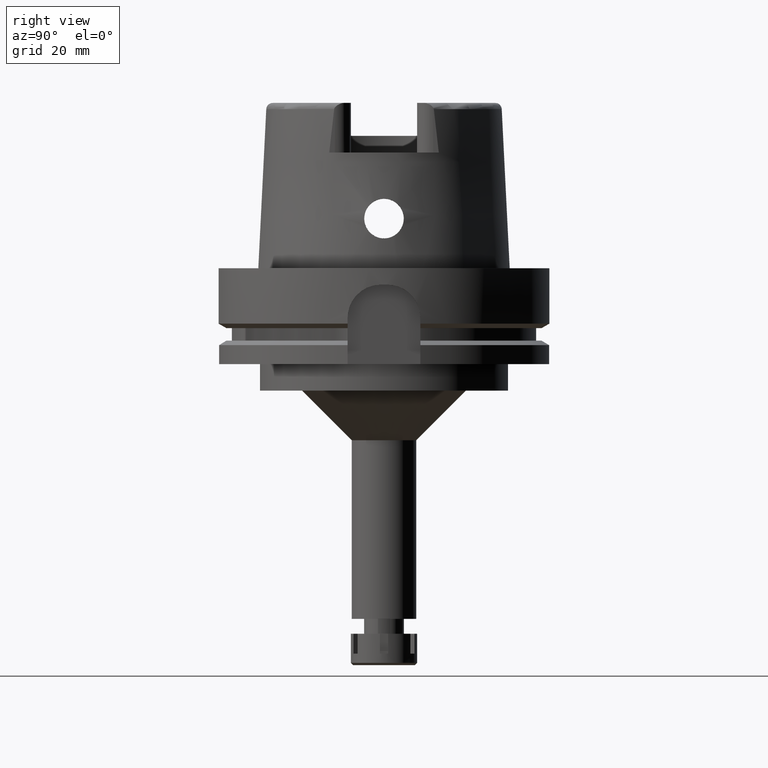
[diagram: clean part render]
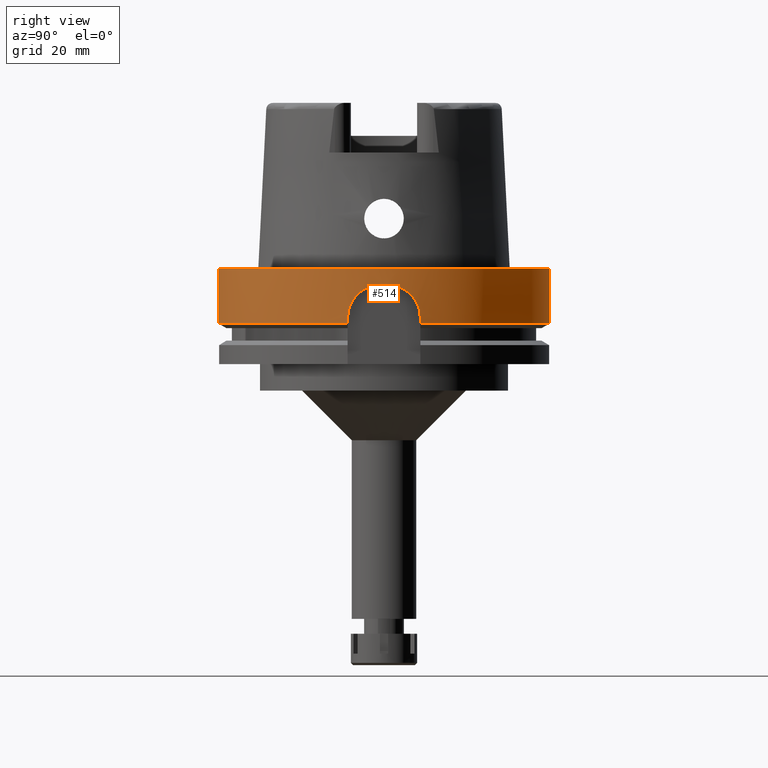
[diagram: same view with one face highlighted and labeled with its STEP entity id]
A machine part, right view. The second image highlights one B-rep face of the part: STEP entity #514.
In plain terms, the highlighted cylindrical surface (partial cylindrical patch) has radius 50 mm, axis along (0, 0, 1).
Its self-contained STEP definition (entity closure, byte-faithful):
#88 = ORIENTED_EDGE ( 'NONE', *, *, #1736, .F. ) ;
#99 = CARTESIAN_POINT ( 'NONE',  ( 48.99493646554881110, -9.978835811942055045, -10.59541656849807190 ) ) ;
#244 = ORIENTED_EDGE ( 'NONE', *, *, #5868, .F. ) ;
#245 = AXIS2_PLACEMENT_3D ( 'NONE', #1968, #3887, #506 ) ;
#247 = CARTESIAN_POINT ( 'NONE',  ( 48.77499359302999693, 11.00000000000000000, -14.38727949799529604 ) ) ;
#279 = CARTESIAN_POINT ( 'NONE',  ( 48.77499359303000404, 11.00000000000000000, -15.00000000000000000 ) ) ;
#288 = VERTEX_POINT ( 'NONE', #5166 ) ;
#309 = CIRCLE ( 'NONE', #5880, 49.99999999999999289 ) ;
#310 = CARTESIAN_POINT ( 'NONE',  ( 49.56496676083803266, 6.581428031144246127, -6.702550432547327297 ) ) ;
#320 = CARTESIAN_POINT ( 'NONE',  ( 49.83945613748896619, -4.000954191359886281, -5.459433149953422770 ) ) ;
#347 = CARTESIAN_POINT ( 'NONE',  ( 48.91479432614488587, 10.36182193981408339, -11.48304786032663927 ) ) ;
#356 = CARTESIAN_POINT ( 'NONE',  ( 49.58780698970614509, -6.407210186110515515, -6.587769479219980795 ) ) ;
#377 = CARTESIAN_POINT ( 'NONE',  ( 49.97771229340344945, 1.614212440280480720, -4.999999999999997335 ) ) ;
#385 = CARTESIAN_POINT ( 'NONE',  ( 49.78192707634182312, -4.663512068624955376, -5.695058963185425149 ) ) ;
#413 = CARTESIAN_POINT ( 'NONE',  ( 49.95328098358680080, -2.238803720519722873, -5.055742412968742272 ) ) ;
#443 = CARTESIAN_POINT ( 'NONE',  ( 49.06437838925266703, -9.638526519421839467, -9.951850654647333982 ) ) ;
#448 = EDGE_CURVE ( 'NONE', #495, #4229, #1462, .T. ) ;
#473 = CARTESIAN_POINT ( 'NONE',  ( 49.39834075078655218, -7.732885138338184916, -7.605386748315880574 ) ) ;
#495 = VERTEX_POINT ( 'NONE', #4391 ) ;
#501 = CARTESIAN_POINT ( 'NONE',  ( 48.94894263345256036, -10.19877896669233053, -11.07774993076129455 ) ) ;
#506 = DIRECTION ( 'NONE',  ( 0.0000000000000000000, 1.000000000000000000, 0.0000000000000000000 ) ) ;
#514 = ADVANCED_FACE ( 'NONE', ( #5311 ), #4858, .T. ) ;
#577 = DIRECTION ( 'NONE',  ( 0.0000000000000000000, 0.0000000000000000000, -1.000000000000000000 ) ) ;
#711 = CARTESIAN_POINT ( 'NONE',  ( 49.28179997357231912, 8.446197654882229955, -8.324378336677213497 ) ) ;
#745 = CARTESIAN_POINT ( 'NONE',  ( 49.33865312065250208, 8.105429752828294809, -7.963445448308294594 ) ) ;
#811 = CARTESIAN_POINT ( 'NONE',  ( 49.60564793962586094, 6.275024799357407979, -6.496570161155732492 ) ) ;
#836 = EDGE_CURVE ( 'NONE', #3610, #1693, #3963, .T. ) ;
#848 = CARTESIAN_POINT ( 'NONE',  ( 49.55662190688366309, 6.643863316616059222, -6.744834015352500600 ) ) ;
#950 = CARTESIAN_POINT ( 'NONE',  ( 48.98273980073956579, -10.03735590529478294, -10.71714038991666484 ) ) ;
#967 = CARTESIAN_POINT ( 'NONE',  ( 0.0000000000000000000, 0.0000000000000000000, -5.000000000000000000 ) ) ;
#998 = DIRECTION ( 'NONE',  ( 0.0000000000000000000, 0.0000000000000000000, 1.000000000000000000 ) ) ;
#1011 = CARTESIAN_POINT ( 'NONE',  ( 49.46604263888387720, -7.286270339748112335, -7.221202394339281128 ) ) ;
#1084 = CARTESIAN_POINT ( 'NONE',  ( 0.0000000000000000000, 0.0000000000000000000, 0.0000000000000000000 ) ) ;
#1223 = CARTESIAN_POINT ( 'NONE',  ( 49.31945312600653608, 8.221817266279819236, -8.082628935079126720 ) ) ;
#1227 = CARTESIAN_POINT ( 'NONE',  ( 0.0000000000000000000, 0.0000000000000000000, -16.75240473580999989 ) ) ;
#1294 = CARTESIAN_POINT ( 'NONE',  ( 49.77054041057699862, -4.783569811470127497, -5.743396082489701904 ) ) ;
#1315 = ORIENTED_EDGE ( 'NONE', *, *, #836, .F. ) ;
#1318 = CARTESIAN_POINT ( 'NONE',  ( 49.54371901960561075, 6.738927160425063789, -6.810528801239854602 ) ) ;
#1328 = CARTESIAN_POINT ( 'NONE',  ( 49.77245377719701480, -4.763569838085457420, -5.735246431890997698 ) ) ;
#1353 = CARTESIAN_POINT ( 'NONE',  ( 49.76179628799657451, 4.873772020791776960, -5.780782315464648491 ) ) ;
#1364 = CARTESIAN_POINT ( 'NONE',  ( 49.57267852349893644, -6.523062891001531582, -6.663583934768706030 ) ) ;
#1425 = CARTESIAN_POINT ( 'NONE',  ( 49.41045203213168691, -7.654703094109661876, -7.535080207974369060 ) ) ;
#1456 = CARTESIAN_POINT ( 'NONE',  ( 48.95776439648555822, -10.15666160547115204, -10.97978164832834835 ) ) ;
#1462 = LINE ( 'NONE', #1488, #3845 ) ;
#1488 = CARTESIAN_POINT ( 'NONE',  ( 48.77499359303000404, 11.00000000000000000, -16.75240473580999989 ) ) ;
#1535 = VECTOR ( 'NONE', #6081, 1000.000000000000000 ) ;
#1544 = CARTESIAN_POINT ( 'NONE',  ( 48.94096314208520937, -10.23696230816230113, -11.16873956921590327 ) ) ;
#1666 = CARTESIAN_POINT ( 'NONE',  ( 48.87674393707114717, 10.54120948439834748, -12.00115026241383376 ) ) ;
#1693 = VERTEX_POINT ( 'NONE', #2779 ) ;
#1696 = CARTESIAN_POINT ( 'NONE',  ( 49.56108095351068954, 6.610592829583718633, -6.722230673437117332 ) ) ;
#1699 = DIRECTION ( 'NONE',  ( 0.0000000000000000000, 0.0000000000000000000, 1.000000000000000000 ) ) ;
#1707 = ORIENTED_EDGE ( 'NONE', *, *, #5593, .T. ) ;
#1736 = EDGE_CURVE ( 'NONE', #288, #5720, #3697, .T. ) ;
#1739 = CARTESIAN_POINT ( 'NONE',  ( 49.87639767666819779, -3.518411891300768701, -5.316500164653930938 ) ) ;
#1764 = CARTESIAN_POINT ( 'NONE',  ( 49.16544797092890207, 9.108932558664836421, -9.136190420978525850 ) ) ;
#1807 = CARTESIAN_POINT ( 'NONE',  ( 49.82636988165926084, -4.161845726787491095, -5.511493841755553014 ) ) ;
#1829 = CARTESIAN_POINT ( 'NONE',  ( 49.73052990978874277, 5.183697505061824806, -5.916898789160295991 ) ) ;
#1839 = CARTESIAN_POINT ( 'NONE',  ( 49.89793573170778274, -3.196910365253966990, -5.238887960337703653 ) ) ;
#1890 = DIRECTION ( 'NONE',  ( 0.9997999799959990108, -0.02000000000000000389, 0.0000000000000000000 ) ) ;
#1913 = DIRECTION ( 'NONE',  ( 0.0000000000000000000, 0.0000000000000000000, 1.000000000000000000 ) ) ;
#1929 = CARTESIAN_POINT ( 'NONE',  ( 48.96585457013529918, -10.11807095405968582, -10.89330374554003278 ) ) ;
#1945 = CIRCLE ( 'NONE', #5214, 50.00000000000000000 ) ;
#1956 = CARTESIAN_POINT ( 'NONE',  ( 0.0000000000000000000, -50.00000000000000000, 0.0000000000000000000 ) ) ;
#1968 = CARTESIAN_POINT ( 'NONE',  ( 0.0000000000000000000, 0.0000000000000000000, -123.2500000000000000 ) ) ;
#1990 = CARTESIAN_POINT ( 'NONE',  ( 48.77499359303000404, -11.00000000000000000, -15.00000000000000000 ) ) ;
#2004 = ORIENTED_EDGE ( 'NONE', *, *, #3953, .F. ) ;
#2017 = CARTESIAN_POINT ( 'NONE',  ( 49.55073958586282856, -6.689344220984132505, -6.774205482412243740 ) ) ;
#2092 = VERTEX_POINT ( 'NONE', #2608 ) ;
#2168 = CARTESIAN_POINT ( 'NONE',  ( 49.33739404800120099, 8.113093122269910751, -7.971196684525627241 ) ) ;
#2196 = CARTESIAN_POINT ( 'NONE',  ( 48.82926044318527659, 10.76052495070106829, -12.80060198106660607 ) ) ;
#2233 = CARTESIAN_POINT ( 'NONE',  ( 49.64248177938728190, 5.975127218322111133, -6.319174716976330153 ) ) ;
#2240 = CARTESIAN_POINT ( 'NONE',  ( 49.77531477545393557, -4.733564130445754969, -5.723076274749266723 ) ) ;
#2242 = CARTESIAN_POINT ( 'NONE',  ( 0.0000000000000000000, 50.00000000000000000, -16.75240473580999989 ) ) ;
#2245 = ORIENTED_EDGE ( 'NONE', *, *, #4278, .T. ) ;
#2284 = CARTESIAN_POINT ( 'NONE',  ( 48.77499359303000404, -11.00000000000000000, -16.75240473580999989 ) ) ;
#2296 = ORIENTED_EDGE ( 'NONE', *, *, #448, .F. ) ;
#2297 = CARTESIAN_POINT ( 'NONE',  ( 49.76411386685738591, 4.850010575467937457, -5.770832213620749052 ) ) ;
#2318 = CARTESIAN_POINT ( 'NONE',  ( 48.77499359303000404, 11.00000000000000000, -15.00000000000000000 ) ) ;
#2366 = CARTESIAN_POINT ( 'NONE',  ( 49.57064774935634688, -6.538472148079495838, -6.673816706413185251 ) ) ;
#2395 = CARTESIAN_POINT ( 'NONE',  ( 48.84396795107890910, -10.69447856156189225, -12.46123641950214633 ) ) ;
#2411 = CARTESIAN_POINT ( 'NONE',  ( 0.0000000000000000000, -50.00000000000000000, 0.0000000000000000000 ) ) ;
#2423 = CARTESIAN_POINT ( 'NONE',  ( 49.35287350463665490, -8.018359093746786570, -7.876598236518157492 ) ) ;
#2499 = DIRECTION ( 'NONE',  ( 0.0000000000000000000, 1.000000000000000000, 0.0000000000000000000 ) ) ;
#2526 = DIRECTION ( 'NONE',  ( 4.946700496258999748E-13, 7.095676941355000738E-14, 1.000000000000000000 ) ) ;
#2608 = CARTESIAN_POINT ( 'NONE',  ( 49.98999899980000095, 1.000000000000000000, -5.000000000000000000 ) ) ;
#2664 = CARTESIAN_POINT ( 'NONE',  ( 49.49988023175471596, 7.052819624301266188, -7.038197812790989438 ) ) ;
#2695 = CARTESIAN_POINT ( 'NONE',  ( 48.92610875242239388, 10.30793063548150457, -11.34409899093541618 ) ) ;
#2735 = CARTESIAN_POINT ( 'NONE',  ( 49.66353029658604612, -5.791941952359221268, -6.221376777214488563 ) ) ;
#2762 = CARTESIAN_POINT ( 'NONE',  ( 49.95282679614464882, 2.250120870932428296, -5.056727787119431383 ) ) ;
#2779 = CARTESIAN_POINT ( 'NONE',  ( 48.77499359303000404, -11.00000000000000000, -15.00000000000000000 ) ) ;
#2928 = CARTESIAN_POINT ( 'NONE',  ( 49.03434599319574971, -9.787369544824320755, -10.21862703251546911 ) ) ;
#2962 = CARTESIAN_POINT ( 'NONE',  ( 48.94468594515902993, -10.21913413085395739, -11.12599018434615239 ) ) ;
#2967 = CARTESIAN_POINT ( 'NONE',  ( 49.98999899980000095, 1.000000000000000000, -5.000000000000000000 ) ) ;
#2989 = CARTESIAN_POINT ( 'NONE',  ( 48.77499359303001825, -11.00000000000000355, -14.38253572031926808 ) ) ;
#3067 = VERTEX_POINT ( 'NONE', #2284 ) ;
#3097 = CARTESIAN_POINT ( 'NONE',  ( 48.93610244466059811, 10.26017787305094764, -11.22519744273120423 ) ) ;
#3132 = CARTESIAN_POINT ( 'NONE',  ( 49.56321377132746875, 6.594605846246127001, -6.711427330220939957 ) ) ;
#3172 = CARTESIAN_POINT ( 'NONE',  ( 49.33438519854037452, 8.131387764260724182, -7.989759036277035875 ) ) ;
#3199 = CARTESIAN_POINT ( 'NONE',  ( 49.32988277997203852, 8.158728486906756672, -8.017608704638069739 ) ) ;
#3206 = CARTESIAN_POINT ( 'NONE',  ( 49.71306143903013464, -5.355979328700309239, -5.992604286611300957 ) ) ;
#3237 = CARTESIAN_POINT ( 'NONE',  ( 49.64614616827093130, -5.939374065967098382, -6.303302322335693653 ) ) ;
#3262 = CARTESIAN_POINT ( 'NONE',  ( 49.74136249068723714, 5.079068558221741192, -5.869220706183151393 ) ) ;
#3271 = CARTESIAN_POINT ( 'NONE',  ( 49.57174269159727231, -6.530167364034880961, -6.668298072457943704 ) ) ;
#3446 = CARTESIAN_POINT ( 'NONE',  ( 48.88535256590828482, -10.50355013045036046, -11.81245062914591770 ) ) ;
#3557 = CARTESIAN_POINT ( 'NONE',  ( 48.93483801777784947, 10.26622744824910072, -11.24004935603877797 ) ) ;
#3583 = CARTESIAN_POINT ( 'NONE',  ( 49.51626149012135159, 6.937049852315970710, -6.952212550806225799 ) ) ;
#3586 = CARTESIAN_POINT ( 'NONE',  ( 48.77499359303000404, -11.00000000000000000, -15.00000000000000000 ) ) ;
#3610 = VERTEX_POINT ( 'NONE', #5129 ) ;
#3617 = CARTESIAN_POINT ( 'NONE',  ( 48.88776689100895823, 10.48957634349499202, -11.84144441687253213 ) ) ;
#3622 = DIRECTION ( 'NONE',  ( 0.0000000000000000000, -1.000000000000000000, 0.0000000000000000000 ) ) ;
#3626 = CARTESIAN_POINT ( 'NONE',  ( 49.80558188375972151, -4.402847898729792320, -5.596390025268380697 ) ) ;
#3648 = CARTESIAN_POINT ( 'NONE',  ( 48.93190507735961603, 10.28025109098400591, -11.27471634077892837 ) ) ;
#3652 = LINE ( 'NONE', #3586, #1535 ) ;
#3666 = CARTESIAN_POINT ( 'NONE',  ( 0.0000000000000000000, 50.00000000000000000, 0.0000000000000000000 ) ) ;
#3676 = CARTESIAN_POINT ( 'NONE',  ( 49.12819095083043663, 9.308068669550296548, -9.424772387329317880 ) ) ;
#3697 = LINE ( 'NONE', #3666, #5150 ) ;
#3711 = CARTESIAN_POINT ( 'NONE',  ( 49.75342103609423106, 4.958852761078784255, -5.816868840426016263 ) ) ;
#3715 = VECTOR ( 'NONE', #5274, 1000.000000000000000 ) ;
#3721 = CARTESIAN_POINT ( 'NONE',  ( 49.61875935454764175, -6.162908080537593314, -6.435429268376628542 ) ) ;
#3845 = VECTOR ( 'NONE', #2526, 1000.000000000000000 ) ;
#3853 = CARTESIAN_POINT ( 'NONE',  ( 49.35795836951319870, -7.987006446862017661, -7.845754077618875222 ) ) ;
#3869 = DIRECTION ( 'NONE',  ( 0.9754998718605770724, 0.2199999999999950051, 0.0000000000000000000 ) ) ;
#3887 = DIRECTION ( 'NONE',  ( 0.0000000000000000000, 0.0000000000000000000, 1.000000000000000000 ) ) ;
#3907 = CARTESIAN_POINT ( 'NONE',  ( 48.94111904088860143, -10.23621530143991443, -11.16694110815239860 ) ) ;
#3953 = EDGE_CURVE ( 'NONE', #4229, #2092, #4055, .T. ) ;
#3963 = B_SPLINE_CURVE_WITH_KNOTS ( 'NONE', 3,
 ( #4102, #5992, #413, #1839, #1739, #320, #1807, #3626, #5525, #385, #2240, #1328, #1294, #4200, #5559, #3206, #2735, #3237, #3721, #4639, #356, #4674, #5621, #1364, #3271, #5161, #2366, #2017, #5337, #1011, #5743, #1425, #473, #5801, #5251, #3853, #2423, #4356, #4852, #4292, #4325, #443, #2928, #99, #950, #1929, #1456, #501, #2962, #4265, #6146, #3907, #1544, #3446, #2395, #4821, #2989, #1990 ),
 .UNSPECIFIED., .F., .F.,
 ( 4, 2, 2, 2, 1, 1, 1, 2, 2, 2, 2, 1, 1, 1, 1, 1, 2, 2, 2, 2, 2, 1, 1, 2, 2, 2, 2, 2, 1, 1, 1, 1, 2, 2, 2, 4 ),
 ( 0.0000000000000000000, 0.1249999999999660827, 0.1874999999999491795, 0.2187499999999406308, 0.2343749999999363842, 0.2421874999999341638, 0.2460937499999330258, 0.2480468749999324984, 0.2499999999999319711, 0.3124999999999173994, 0.3437499999999102385, 0.3593749999999065747, 0.3671874999999047429, 0.3710937499999039102, 0.3730468749999035771, 0.3740234374999034106, 0.3745117187499032441, 0.3749999999999031330, 0.4374999999999074629, 0.4687499999999096834, 0.4843749999999106826, 0.4921874999999112377, 0.4960937499999114597, 0.4980468749999116262, 0.4999999999999117373, 0.6249999999999248379, 0.6874999999999314992, 0.7187499999999346079, 0.7343749999999361622, 0.7421874999999367173, 0.7460937499999371614, 0.7480468749999377165, 0.7490234374999377165, 0.7499999999999378275, 0.8749999999999688027, 1.000000000000000000 ),
 .UNSPECIFIED. ) ;
#4055 = B_SPLINE_CURVE_WITH_KNOTS ( 'NONE', 3,
 ( #279, #247, #5953, #2196, #5452, #1666, #3617, #6050, #347, #2695, #3648, #3557, #3097, #5549, #5516, #4094, #5482, #3676, #1764, #4531, #4986, #711, #5577, #1223, #3199, #3172, #2168, #745, #4595, #6018, #2664, #3583, #5121, #1318, #4064, #848, #1696, #3132, #5020, #5985, #5054, #310, #811, #2233, #4129, #6075, #1829, #3262, #3711, #5611, #1353, #4666, #2297, #4190, #5153, #2762, #377, #2967 ),
 .UNSPECIFIED., .F., .F.,
 ( 4, 2, 2, 2, 1, 1, 1, 1, 2, 2, 2, 2, 2, 1, 1, 1, 2, 2, 2, 2, 2, 1, 1, 1, 1, 2, 2, 2, 2, 1, 1, 1, 2, 2, 2, 4 ),
 ( 0.0000000000000000000, 0.1250000000000097422, 0.1875000000000145717, 0.2187500000000169864, 0.2343750000000180966, 0.2421875000000188460, 0.2460937500000193179, 0.2480468750000194844, 0.2490234375000195954, 0.2500000000000197065, 0.3750000000000021094, 0.4374999999999935052, 0.4687499999999891753, 0.4843749999999870104, 0.4921874999999857891, 0.4960937499999851785, 0.4980468749999849010, 0.4999999999999846789, 0.5624999999999774625, 0.5937499999999737987, 0.6093749999999719114, 0.6171874999999708011, 0.6210937499999703570, 0.6230468749999701350, 0.6240234374999703570, 0.6245117187499704681, 0.6249999999999706901, 0.6874999999999745759, 0.7187499999999764633, 0.7343749999999773515, 0.7421874999999776845, 0.7460937499999780176, 0.7480468749999781286, 0.7499999999999782396, 0.8749999999999891198, 1.000000000000000000 ),
 .UNSPECIFIED. ) ;
#4064 = CARTESIAN_POINT ( 'NONE',  ( 49.55246830521456047, 6.674587052260434028, -6.765940086851756519 ) ) ;
#4094 = CARTESIAN_POINT ( 'NONE',  ( 48.97525432403242718, 10.07274272493811473, -10.76813233378630130 ) ) ;
#4102 = CARTESIAN_POINT ( 'NONE',  ( 49.98999899980000095, -1.000000000000000000, -5.000000000000000000 ) ) ;
#4129 = CARTESIAN_POINT ( 'NONE',  ( 49.69243456745243748, 5.538350796193209469, -6.087619472951653066 ) ) ;
#4190 = CARTESIAN_POINT ( 'NONE',  ( 49.82777514091928595, 4.194038654933279986, -5.498030378564667586 ) ) ;
#4200 = CARTESIAN_POINT ( 'NONE',  ( 49.76943145420971604, -4.795117634410740237, -5.748126376344318444 ) ) ;
#4220 = CIRCLE ( 'NONE', #4718, 50.00000000000000000 ) ;
#4225 = LINE ( 'NONE', #1956, #3715 ) ;
#4229 = VERTEX_POINT ( 'NONE', #2318 ) ;
#4265 = CARTESIAN_POINT ( 'NONE',  ( 48.94259614931797131, -10.22913865689517010, -11.14992271542006819 ) ) ;
#4278 = EDGE_CURVE ( 'NONE', #3610, #2092, #309, .T. ) ;
#4292 = CARTESIAN_POINT ( 'NONE',  ( 49.24837476816774995, -8.658280979199940219, -8.514355068338282706 ) ) ;
#4314 = CIRCLE ( 'NONE', #4994, 50.00000000000000711 ) ;
#4325 = CARTESIAN_POINT ( 'NONE',  ( 49.16575371030025821, -9.113529527424253374, -9.117615486337991015 ) ) ;
#4347 = ORIENTED_EDGE ( 'NONE', *, *, #5111, .T. ) ;
#4356 = CARTESIAN_POINT ( 'NONE',  ( 49.34946635235795043, -8.039317984157190011, -7.897309004984406577 ) ) ;
#4391 = CARTESIAN_POINT ( 'NONE',  ( 48.77499359303000404, 11.00000000000000000, -16.75240473580999989 ) ) ;
#4531 = CARTESIAN_POINT ( 'NONE',  ( 49.22689158002565790, 8.764511256695632468, -8.695467705717852880 ) ) ;
#4595 = CARTESIAN_POINT ( 'NONE',  ( 49.39675399092524088, 7.751253006921551503, -7.606889660040399903 ) ) ;
#4639 = CARTESIAN_POINT ( 'NONE',  ( 49.60473829237331245, -6.275269854590971974, -6.503802156337952667 ) ) ;
#4666 = CARTESIAN_POINT ( 'NONE',  ( 49.76344995333550969, 4.856827817942175329, -5.773680930800949795 ) ) ;
#4674 = CARTESIAN_POINT ( 'NONE',  ( 49.57919798917325949, -6.473368179535865963, -6.630822192781491431 ) ) ;
#4708 = DIRECTION ( 'NONE',  ( 0.0000000000000000000, -2.969006079282000197E-14, -1.000000000000000000 ) ) ;
#4718 = AXIS2_PLACEMENT_3D ( 'NONE', #1084, #577, #2499 ) ;
#4778 = CARTESIAN_POINT ( 'NONE',  ( 0.0000000000000000000, 0.0000000000000000000, -16.75240473580999989 ) ) ;
#4821 = CARTESIAN_POINT ( 'NONE',  ( 48.78878846463978647, -10.94265717808615257, -13.74628418798464047 ) ) ;
#4852 = CARTESIAN_POINT ( 'NONE',  ( 49.34755925166847845, -8.051019299351487746, -7.908928086832985649 ) ) ;
#4858 = CYLINDRICAL_SURFACE ( 'NONE', #245, 50.00000000000000000 ) ;
#4986 = CARTESIAN_POINT ( 'NONE',  ( 49.24829912954941591, 8.642087885015097726, -8.547277381810232555 ) ) ;
#4994 = AXIS2_PLACEMENT_3D ( 'NONE', #4778, #998, #3869 ) ;
#5020 = CARTESIAN_POINT ( 'NONE',  ( 49.56425600386169350, 6.586775004322072746, -6.706149411671543881 ) ) ;
#5054 = CARTESIAN_POINT ( 'NONE',  ( 49.56499066999660386, 6.581247502258613657, -6.702429386474220152 ) ) ;
#5111 = EDGE_CURVE ( 'NONE', #495, #5720, #4314, .T. ) ;
#5121 = CARTESIAN_POINT ( 'NONE',  ( 49.53729671950530644, 6.785679480015271992, -6.843421434289882477 ) ) ;
#5129 = CARTESIAN_POINT ( 'NONE',  ( 49.98999899980000095, -1.000000000000000000, -5.000000000000000000 ) ) ;
#5133 = ORIENTED_EDGE ( 'NONE', *, *, #6047, .T. ) ;
#5150 = VECTOR ( 'NONE', #4708, 1000.000000000000000 ) ;
#5153 = CARTESIAN_POINT ( 'NONE',  ( 49.87785821990257773, 3.540034393804924573, -5.305687761905348410 ) ) ;
#5161 = CARTESIAN_POINT ( 'NONE',  ( 49.57111837702830570, -6.534904167019651489, -6.671444066012823804 ) ) ;
#5164 = VERTEX_POINT ( 'NONE', #2411 ) ;
#5166 = CARTESIAN_POINT ( 'NONE',  ( 0.0000000000000000000, 50.00000000000000000, 0.0000000000000000000 ) ) ;
#5214 = AXIS2_PLACEMENT_3D ( 'NONE', #1227, #1699, #3622 ) ;
#5251 = CARTESIAN_POINT ( 'NONE',  ( 49.36964200943436509, -7.914466274374566623, -7.775326136509981723 ) ) ;
#5274 = DIRECTION ( 'NONE',  ( 0.0000000000000000000, 2.969006079282000197E-14, -1.000000000000000000 ) ) ;
#5311 = FACE_OUTER_BOUND ( 'NONE', #5949, .T. ) ;
#5337 = CARTESIAN_POINT ( 'NONE',  ( 49.52215766037632960, -6.898651374424408900, -6.918325677192864731 ) ) ;
#5452 = CARTESIAN_POINT ( 'NONE',  ( 48.84621883385881347, 10.68316248689715309, -12.48058003748438693 ) ) ;
#5482 = CARTESIAN_POINT ( 'NONE',  ( 49.02753604843316282, 9.828340935201230977, -10.25773596938700649 ) ) ;
#5507 = ORIENTED_EDGE ( 'NONE', *, *, #5884, .T. ) ;
#5516 = CARTESIAN_POINT ( 'NONE',  ( 48.93750148583540494, 10.25348215771308524, -11.20881527883794249 ) ) ;
#5525 = CARTESIAN_POINT ( 'NONE',  ( 49.79489823127121895, -4.523264813226764325, -5.640539084587539165 ) ) ;
#5549 = CARTESIAN_POINT ( 'NONE',  ( 48.93694705200856276, 10.25613605330237199, -11.21529737632380908 ) ) ;
#5559 = CARTESIAN_POINT ( 'NONE',  ( 49.74258721065783817, -5.073846585775378060, -5.862758464540907433 ) ) ;
#5577 = CARTESIAN_POINT ( 'NONE',  ( 49.29889777551809260, 8.345189676815721214, -8.212778058844019569 ) ) ;
#5582 = CARTESIAN_POINT ( 'NONE',  ( 0.0000000000000000000, -50.00000000000000000, -16.75240473580999989 ) ) ;
#5593 = EDGE_CURVE ( 'NONE', #288, #5164, #4220, .T. ) ;
#5611 = CARTESIAN_POINT ( 'NONE',  ( 49.75930544238741504, 4.899223320193041964, -5.791490232035188868 ) ) ;
#5621 = CARTESIAN_POINT ( 'NONE',  ( 49.57485765160701874, -6.506490958051212914, -6.652618211512079327 ) ) ;
#5720 = VERTEX_POINT ( 'NONE', #2242 ) ;
#5743 = CARTESIAN_POINT ( 'NONE',  ( 49.44513060950925620, -7.427636351377159940, -7.336717803514626546 ) ) ;
#5801 = CARTESIAN_POINT ( 'NONE',  ( 49.37934619543993620, -7.853399683958087074, -7.717560530362601590 ) ) ;
#5868 = EDGE_CURVE ( 'NONE', #1693, #3067, #3652, .T. ) ;
#5880 = AXIS2_PLACEMENT_3D ( 'NONE', #967, #1913, #1890 ) ;
#5884 = EDGE_CURVE ( 'NONE', #5920, #3067, #1945, .T. ) ;
#5920 = VERTEX_POINT ( 'NONE', #5582 ) ;
#5949 = EDGE_LOOP ( 'NONE', ( #2004, #2296, #4347, #88, #1707, #5133, #5507, #244, #1315, #2245 ) ) ;
#5953 = CARTESIAN_POINT ( 'NONE',  ( 48.78856030556881507, 10.94353690482416042, -13.75626785110909367 ) ) ;
#5985 = CARTESIAN_POINT ( 'NONE',  ( 49.56469749429616911, 6.583453843790646687, -6.703913878088411771 ) ) ;
#5992 = CARTESIAN_POINT ( 'NONE',  ( 49.97781926718656820, -1.608864821176901883, -5.000000000000001776 ) ) ;
#6018 = CARTESIAN_POINT ( 'NONE',  ( 49.44366314032269116, 7.439718872512102621, -7.342474372664345772 ) ) ;
#6047 = EDGE_CURVE ( 'NONE', #5164, #5920, #4225, .T. ) ;
#6050 = CARTESIAN_POINT ( 'NONE',  ( 48.90557320121615703, 10.40550940664742008, -11.60242351974995678 ) ) ;
#6075 = CARTESIAN_POINT ( 'NONE',  ( 49.70820250154468312, 5.394917307035128395, -6.016186135877706676 ) ) ;
#6081 = DIRECTION ( 'NONE',  ( -5.027793947017000297E-13, 6.690209687562999968E-14, -1.000000000000000000 ) ) ;
#6146 = CARTESIAN_POINT ( 'NONE',  ( 48.94170878288017690, -10.23338952803701041, -11.16013914490886627 ) ) ;